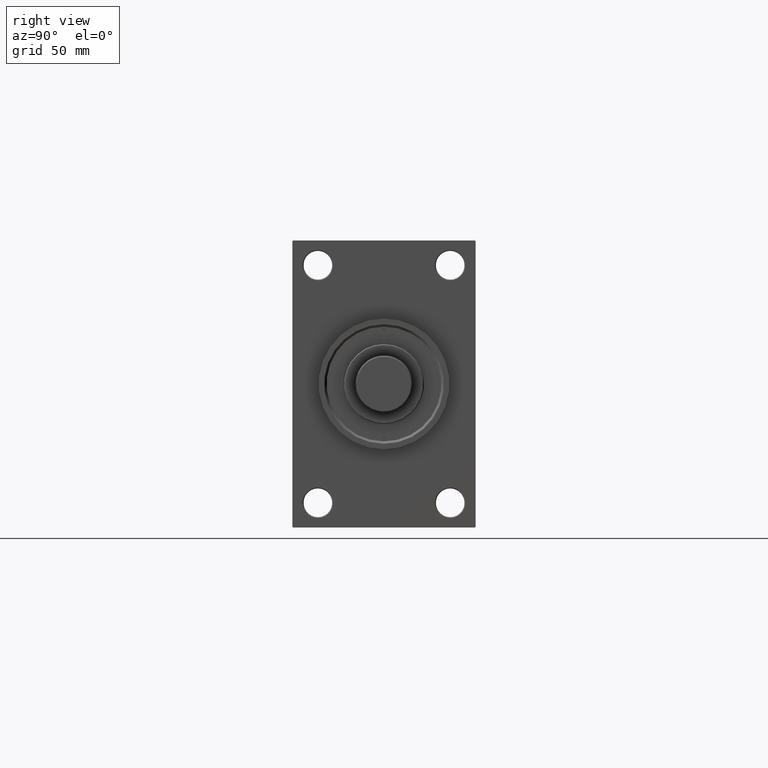
[diagram: clean part render]
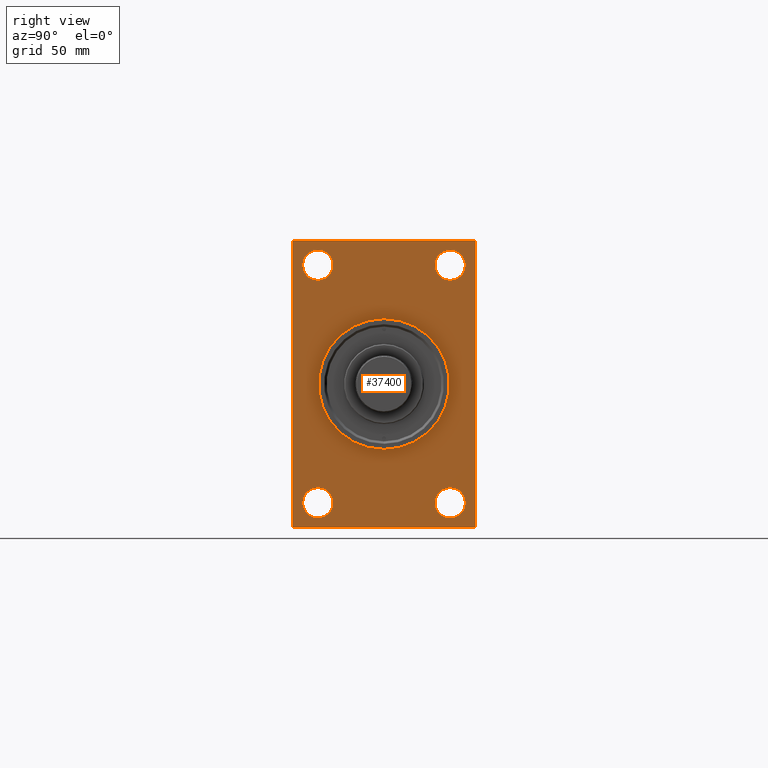
[diagram: same view with one face highlighted and labeled with its STEP entity id]
A machine part, right view. The second image highlights one B-rep face of the part: STEP entity #37400.
In plain terms, the highlighted planar face has unit normal (-1, 0, 0).
Its self-contained STEP definition (entity closure, byte-faithful):
#32 = VECTOR ( 'NONE', #36883, 1000.000000000000000 ) ;
#132 = AXIS2_PLACEMENT_3D ( 'NONE', #26851, #41551, #30043 ) ;
#567 = EDGE_CURVE ( 'NONE', #2687, #39132, #48159, .T. ) ;
#687 = DIRECTION ( 'NONE',  ( -0.000000000000000000, 0.000000000000000000, 1.000000000000000000 ) ) ;
#1162 = CARTESIAN_POINT ( 'NONE',  ( 299.0000000000000000, 0.000000000000000000, 0.000000000000000000 ) ) ;
#1447 = DIRECTION ( 'NONE',  ( 1.000000000000000000, 0.000000000000000000, 0.000000000000000000 ) ) ;
#1996 = VECTOR ( 'NONE', #32281, 999.9999999999998863 ) ;
#2513 = ORIENTED_EDGE ( 'NONE', *, *, #25043, .T. ) ;
#2579 = CARTESIAN_POINT ( 'NONE',  ( 299.0000000000000000, 57.49999999999997868, -89.49999999999990052 ) ) ;
#2687 = VERTEX_POINT ( 'NONE', #26410 ) ;
#2974 = CARTESIAN_POINT ( 'NONE',  ( 299.0000000000000000, -57.00000000000001421, 89.99999999999997158 ) ) ;
#3154 = CARTESIAN_POINT ( 'NONE',  ( 299.0000000000000000, -57.00000000000002132, -90.00000000000001421 ) ) ;
#3408 = CIRCLE ( 'NONE', #47147, 9.500000000000008882 ) ;
#3507 = DIRECTION ( 'NONE',  ( -1.000000000000000000, 0.000000000000000000, -0.000000000000000000 ) ) ;
#4846 = FACE_BOUND ( 'NONE', #8469, .T. ) ;
#4993 = CARTESIAN_POINT ( 'NONE',  ( 299.0000000000000000, 0.000000000000000000, 41.00000000000000000 ) ) ;
#5867 = CARTESIAN_POINT ( 'NONE',  ( 299.0000000000000000, 57.49999999999997868, -89.49999999999995737 ) ) ;
#6025 = DIRECTION ( 'NONE',  ( -1.000000000000000000, 0.000000000000000000, -0.000000000000000000 ) ) ;
#6338 = CIRCLE ( 'NONE', #12574, 41.00000000000000000 ) ;
#6503 = EDGE_LOOP ( 'NONE', ( #7154, #2513 ) ) ;
#7154 = ORIENTED_EDGE ( 'NONE', *, *, #38714, .T. ) ;
#7360 = CARTESIAN_POINT ( 'NONE',  ( 299.0000000000000000, -57.50000000000002132, 89.49999999999991473 ) ) ;
#7374 = CARTESIAN_POINT ( 'NONE',  ( 299.0000000000000000, 41.50000000000000711, -84.00000000000000000 ) ) ;
#8286 = CIRCLE ( 'NONE', #19991, 41.00000000000000000 ) ;
#8309 = ORIENTED_EDGE ( 'NONE', *, *, #17703, .T. ) ;
#8352 = CARTESIAN_POINT ( 'NONE',  ( 299.0000000000000000, -41.49999999999999289, 84.00000000000001421 ) ) ;
#8422 = ORIENTED_EDGE ( 'NONE', *, *, #20536, .T. ) ;
#8469 = EDGE_LOOP ( 'NONE', ( #28689, #8309 ) ) ;
#8644 = CARTESIAN_POINT ( 'NONE',  ( 299.0000000000000000, 41.50000000000000711, 65.00000000000000000 ) ) ;
#8754 = FACE_BOUND ( 'NONE', #16782, .T. ) ;
#9883 = AXIS2_PLACEMENT_3D ( 'NONE', #30245, #25417, #21275 ) ;
#9911 = DIRECTION ( 'NONE',  ( -1.000000000000000000, 0.000000000000000000, -0.000000000000000000 ) ) ;
#9916 = VERTEX_POINT ( 'NONE', #2579 ) ;
#10199 = VECTOR ( 'NONE', #31711, 1000.000000000000000 ) ;
#10764 = AXIS2_PLACEMENT_3D ( 'NONE', #39750, #9911, #35338 ) ;
#10846 = DIRECTION ( 'NONE',  ( 0.000000000000000000, 0.000000000000000000, 1.000000000000000000 ) ) ;
#11850 = CIRCLE ( 'NONE', #41538, 9.500000000000008882 ) ;
#11887 = VERTEX_POINT ( 'NONE', #2974 ) ;
#12287 = LINE ( 'NONE', #5867, #1996 ) ;
#12398 = LINE ( 'NONE', #24362, #10199 ) ;
#12574 = AXIS2_PLACEMENT_3D ( 'NONE', #39862, #36179, #17588 ) ;
#12669 = CARTESIAN_POINT ( 'NONE',  ( 299.0000000000000000, -57.00000000000002132, -90.00000000000001421 ) ) ;
#12938 = VECTOR ( 'NONE', #48098, 1000.000000000000000 ) ;
#13353 = CARTESIAN_POINT ( 'NONE',  ( 299.0000000000000000, 41.50000000000000711, 74.50000000000001421 ) ) ;
#14486 = ORIENTED_EDGE ( 'NONE', *, *, #567, .F. ) ;
#14603 = LINE ( 'NONE', #33191, #12938 ) ;
#14945 = EDGE_CURVE ( 'NONE', #18706, #39132, #24913, .T. ) ;
#15075 = DIRECTION ( 'NONE',  ( -1.000000000000000000, 0.000000000000000000, -0.000000000000000000 ) ) ;
#15340 = EDGE_CURVE ( 'NONE', #17455, #11887, #12398, .T. ) ;
#16224 = AXIS2_PLACEMENT_3D ( 'NONE', #13353, #6025, #42961 ) ;
#16357 = DIRECTION ( 'NONE',  ( 0.000000000000000000, 0.000000000000000000, -1.000000000000000000 ) ) ;
#16561 = FACE_BOUND ( 'NONE', #6503, .T. ) ;
#16578 = VERTEX_POINT ( 'NONE', #29670 ) ;
#16782 = EDGE_LOOP ( 'NONE', ( #25083, #37053 ) ) ;
#17455 = VERTEX_POINT ( 'NONE', #20635 ) ;
#17588 = DIRECTION ( 'NONE',  ( 0.000000000000000000, 0.000000000000000000, -1.000000000000000000 ) ) ;
#17703 = EDGE_CURVE ( 'NONE', #37509, #44041, #11850, .T. ) ;
#18052 = EDGE_CURVE ( 'NONE', #11887, #16578, #48192, .T. ) ;
#18112 = EDGE_CURVE ( 'NONE', #20006, #43910, #22770, .T. ) ;
#18201 = ORIENTED_EDGE ( 'NONE', *, *, #34411, .F. ) ;
#18430 = ORIENTED_EDGE ( 'NONE', *, *, #15340, .T. ) ;
#18706 = VERTEX_POINT ( 'NONE', #42866 ) ;
#18997 = VERTEX_POINT ( 'NONE', #27399 ) ;
#19899 = LINE ( 'NONE', #34834, #20818 ) ;
#19991 = AXIS2_PLACEMENT_3D ( 'NONE', #46426, #1447, #16357 ) ;
#20006 = VERTEX_POINT ( 'NONE', #21035 ) ;
#20013 = VECTOR ( 'NONE', #21278, 1000.000000000000000 ) ;
#20117 = CIRCLE ( 'NONE', #16224, 9.500000000000008882 ) ;
#20151 = DIRECTION ( 'NONE',  ( 0.000000000000000000, -0.7071067811865474617, 0.7071067811865474617 ) ) ;
#20519 = EDGE_CURVE ( 'NONE', #44094, #34776, #6338, .T. ) ;
#20536 = EDGE_CURVE ( 'NONE', #43910, #20006, #47764, .T. ) ;
#20635 = CARTESIAN_POINT ( 'NONE',  ( 299.0000000000000000, 56.99999999999992184, 89.99999999999998579 ) ) ;
#20818 = VECTOR ( 'NONE', #20151, 1000.000000000000114 ) ;
#21035 = CARTESIAN_POINT ( 'NONE',  ( 299.0000000000000000, -41.49999999999999289, -65.00000000000002842 ) ) ;
#21275 = DIRECTION ( 'NONE',  ( 0.000000000000000000, 0.000000000000000000, 1.000000000000000000 ) ) ;
#21278 = DIRECTION ( 'NONE',  ( 0.000000000000000000, -1.000000000000000000, -1.206764157201257045E-16 ) ) ;
#21924 = DIRECTION ( 'NONE',  ( 0.000000000000000000, 0.000000000000000000, 1.000000000000000000 ) ) ;
#22064 = ORIENTED_EDGE ( 'NONE', *, *, #18052, .T. ) ;
#22257 = ORIENTED_EDGE ( 'NONE', *, *, #18112, .T. ) ;
#22770 = CIRCLE ( 'NONE', #36854, 9.499999999999953815 ) ;
#22983 = EDGE_LOOP ( 'NONE', ( #35263, #46343, #14486, #46619, #18201, #25979, #18430, #22064 ) ) ;
#23070 = EDGE_CURVE ( 'NONE', #16578, #18706, #26715, .T. ) ;
#23303 = CIRCLE ( 'NONE', #31141, 9.500000000000008882 ) ;
#23642 = DIRECTION ( 'NONE',  ( -1.000000000000000000, 0.000000000000000000, -0.000000000000000000 ) ) ;
#23876 = PLANE ( 'NONE',  #48204 ) ;
#23923 = CIRCLE ( 'NONE', #9883, 9.500000000000008882 ) ;
#24362 = CARTESIAN_POINT ( 'NONE',  ( 299.0000000000000000, 57.49999999999997158, 89.99999999999998579 ) ) ;
#24913 = LINE ( 'NONE', #3154, #32 ) ;
#25043 = EDGE_CURVE ( 'NONE', #41742, #45713, #3408, .T. ) ;
#25083 = ORIENTED_EDGE ( 'NONE', *, *, #41928, .T. ) ;
#25417 = DIRECTION ( 'NONE',  ( -1.000000000000000000, 0.000000000000000000, -0.000000000000000000 ) ) ;
#25966 = DIRECTION ( 'NONE',  ( -1.000000000000000000, 0.000000000000000000, -0.000000000000000000 ) ) ;
#25979 = ORIENTED_EDGE ( 'NONE', *, *, #42873, .T. ) ;
#26410 = CARTESIAN_POINT ( 'NONE',  ( 299.0000000000000000, 56.99999999999992895, -90.00000000000000000 ) ) ;
#26665 = CARTESIAN_POINT ( 'NONE',  ( 299.0000000000000000, -41.49999999999999289, -74.49999999999998579 ) ) ;
#26715 = LINE ( 'NONE', #41644, #43174 ) ;
#26851 = CARTESIAN_POINT ( 'NONE',  ( 299.0000000000000000, -41.49999999999999289, -74.49999999999998579 ) ) ;
#26870 = CARTESIAN_POINT ( 'NONE',  ( 299.0000000000000000, -41.49999999999999289, 65.00000000000000000 ) ) ;
#27399 = CARTESIAN_POINT ( 'NONE',  ( 299.0000000000000000, 57.49999999999997158, 89.49999999999992895 ) ) ;
#28689 = ORIENTED_EDGE ( 'NONE', *, *, #47913, .T. ) ;
#28982 = VERTEX_POINT ( 'NONE', #31473 ) ;
#29670 = CARTESIAN_POINT ( 'NONE',  ( 299.0000000000000000, -57.50000000000002132, 89.49999999999991473 ) ) ;
#30043 = DIRECTION ( 'NONE',  ( 0.000000000000000000, 0.000000000000000000, 1.000000000000000000 ) ) ;
#30245 = CARTESIAN_POINT ( 'NONE',  ( 299.0000000000000000, 41.50000000000000711, -74.50000000000000000 ) ) ;
#30823 = DIRECTION ( 'NONE',  ( 0.000000000000000000, 0.000000000000000000, 1.000000000000000000 ) ) ;
#31141 = AXIS2_PLACEMENT_3D ( 'NONE', #47506, #25966, #32595 ) ;
#31222 = ORIENTED_EDGE ( 'NONE', *, *, #34223, .F. ) ;
#31473 = CARTESIAN_POINT ( 'NONE',  ( 299.0000000000000000, 41.50000000000000711, -64.99999999999998579 ) ) ;
#31711 = DIRECTION ( 'NONE',  ( 0.000000000000000000, -1.000000000000000000, -1.206764157201257291E-16 ) ) ;
#32281 = DIRECTION ( 'NONE',  ( -0.000000000000000000, 0.7071067811865574537, 0.7071067811865376918 ) ) ;
#32595 = DIRECTION ( 'NONE',  ( 0.000000000000000000, 0.000000000000000000, 1.000000000000000000 ) ) ;
#33191 = CARTESIAN_POINT ( 'NONE',  ( 299.0000000000000000, 57.49999999999997158, 89.99999999999998579 ) ) ;
#33340 = EDGE_CURVE ( 'NONE', #2687, #9916, #12287, .T. ) ;
#34223 = EDGE_CURVE ( 'NONE', #34776, #44094, #8286, .T. ) ;
#34411 = EDGE_CURVE ( 'NONE', #18997, #9916, #14603, .T. ) ;
#34776 = VERTEX_POINT ( 'NONE', #4993 ) ;
#34834 = CARTESIAN_POINT ( 'NONE',  ( 299.0000000000000000, 56.99999999999992184, 89.99999999999998579 ) ) ;
#34900 = FACE_BOUND ( 'NONE', #39043, .T. ) ;
#35263 = ORIENTED_EDGE ( 'NONE', *, *, #23070, .T. ) ;
#35338 = DIRECTION ( 'NONE',  ( 0.000000000000000000, 0.000000000000000000, 1.000000000000000000 ) ) ;
#36179 = DIRECTION ( 'NONE',  ( 1.000000000000000000, 0.000000000000000000, 0.000000000000000000 ) ) ;
#36296 = CARTESIAN_POINT ( 'NONE',  ( 299.0000000000000000, -41.49999999999999289, -83.99999999999992895 ) ) ;
#36349 = CARTESIAN_POINT ( 'NONE',  ( 299.0000000000000000, 41.50000000000000711, 84.00000000000001421 ) ) ;
#36854 = AXIS2_PLACEMENT_3D ( 'NONE', #26665, #41831, #30823 ) ;
#36883 = DIRECTION ( 'NONE',  ( 0.000000000000000000, 0.7071067811865573427, -0.7071067811865378028 ) ) ;
#37000 = DIRECTION ( 'NONE',  ( 0.000000000000000000, 0.000000000000000000, -1.000000000000000000 ) ) ;
#37053 = ORIENTED_EDGE ( 'NONE', *, *, #46424, .T. ) ;
#37400 = ADVANCED_FACE ( 'NONE', ( #16561, #34900, #8754, #4846, #41766, #41536 ), #23876, .F. ) ;
#37509 = VERTEX_POINT ( 'NONE', #36349 ) ;
#38156 = DIRECTION ( 'NONE',  ( -0.000000000000000000, -0.7071067811865131558, -0.7071067811865818786 ) ) ;
#38714 = EDGE_CURVE ( 'NONE', #45713, #41742, #38894, .T. ) ;
#38894 = CIRCLE ( 'NONE', #10764, 9.500000000000008882 ) ;
#39043 = EDGE_LOOP ( 'NONE', ( #8422, #22257 ) ) ;
#39132 = VERTEX_POINT ( 'NONE', #12669 ) ;
#39192 = VECTOR ( 'NONE', #38156, 1000.000000000000000 ) ;
#39521 = ORIENTED_EDGE ( 'NONE', *, *, #20519, .F. ) ;
#39750 = CARTESIAN_POINT ( 'NONE',  ( 299.0000000000000000, -41.49999999999999289, 74.50000000000001421 ) ) ;
#39862 = CARTESIAN_POINT ( 'NONE',  ( 299.0000000000000000, 0.000000000000000000, 0.000000000000000000 ) ) ;
#40350 = CARTESIAN_POINT ( 'NONE',  ( 299.0000000000000000, 57.49999999999997868, -90.00000000000000000 ) ) ;
#40674 = CARTESIAN_POINT ( 'NONE',  ( 299.0000000000000000, 41.50000000000000711, 74.50000000000001421 ) ) ;
#41249 = CARTESIAN_POINT ( 'NONE',  ( 299.0000000000000000, -41.49999999999999289, 74.50000000000001421 ) ) ;
#41536 = FACE_OUTER_BOUND ( 'NONE', #22983, .T. ) ;
#41538 = AXIS2_PLACEMENT_3D ( 'NONE', #40674, #3507, #10846 ) ;
#41551 = DIRECTION ( 'NONE',  ( -1.000000000000000000, 0.000000000000000000, -0.000000000000000000 ) ) ;
#41644 = CARTESIAN_POINT ( 'NONE',  ( 299.0000000000000000, -57.50000000000002132, 89.99999999999997158 ) ) ;
#41742 = VERTEX_POINT ( 'NONE', #8352 ) ;
#41766 = FACE_BOUND ( 'NONE', #42151, .T. ) ;
#41831 = DIRECTION ( 'NONE',  ( -1.000000000000000000, 0.000000000000000000, -0.000000000000000000 ) ) ;
#41928 = EDGE_CURVE ( 'NONE', #45275, #28982, #23923, .T. ) ;
#42151 = EDGE_LOOP ( 'NONE', ( #31222, #39521 ) ) ;
#42866 = CARTESIAN_POINT ( 'NONE',  ( 299.0000000000000000, -57.50000000000002132, -89.49999999999997158 ) ) ;
#42873 = EDGE_CURVE ( 'NONE', #18997, #17455, #19899, .T. ) ;
#42961 = DIRECTION ( 'NONE',  ( 0.000000000000000000, 0.000000000000000000, 1.000000000000000000 ) ) ;
#43174 = VECTOR ( 'NONE', #37000, 1000.000000000000000 ) ;
#43910 = VERTEX_POINT ( 'NONE', #36296 ) ;
#44041 = VERTEX_POINT ( 'NONE', #8644 ) ;
#44094 = VERTEX_POINT ( 'NONE', #46050 ) ;
#45275 = VERTEX_POINT ( 'NONE', #7374 ) ;
#45713 = VERTEX_POINT ( 'NONE', #26870 ) ;
#46050 = CARTESIAN_POINT ( 'NONE',  ( 299.0000000000000000, 5.021051876504148963E-15, -41.00000000000000000 ) ) ;
#46343 = ORIENTED_EDGE ( 'NONE', *, *, #14945, .T. ) ;
#46424 = EDGE_CURVE ( 'NONE', #28982, #45275, #23303, .T. ) ;
#46426 = CARTESIAN_POINT ( 'NONE',  ( 299.0000000000000000, 0.000000000000000000, 0.000000000000000000 ) ) ;
#46619 = ORIENTED_EDGE ( 'NONE', *, *, #33340, .T. ) ;
#47147 = AXIS2_PLACEMENT_3D ( 'NONE', #41249, #15075, #21924 ) ;
#47506 = CARTESIAN_POINT ( 'NONE',  ( 299.0000000000000000, 41.50000000000000711, -74.50000000000000000 ) ) ;
#47764 = CIRCLE ( 'NONE', #132, 9.499999999999953815 ) ;
#47913 = EDGE_CURVE ( 'NONE', #44041, #37509, #20117, .T. ) ;
#48098 = DIRECTION ( 'NONE',  ( 0.000000000000000000, 3.854941057726238467E-17, -1.000000000000000000 ) ) ;
#48159 = LINE ( 'NONE', #40350, #20013 ) ;
#48192 = LINE ( 'NONE', #7360, #39192 ) ;
#48204 = AXIS2_PLACEMENT_3D ( 'NONE', #1162, #23642, #687 ) ;